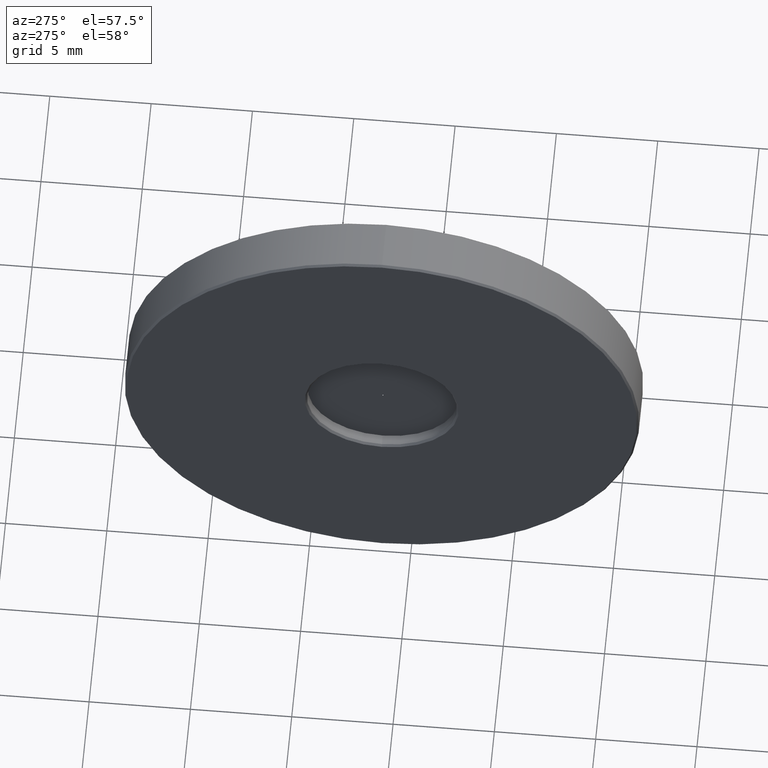
[diagram: clean part render]
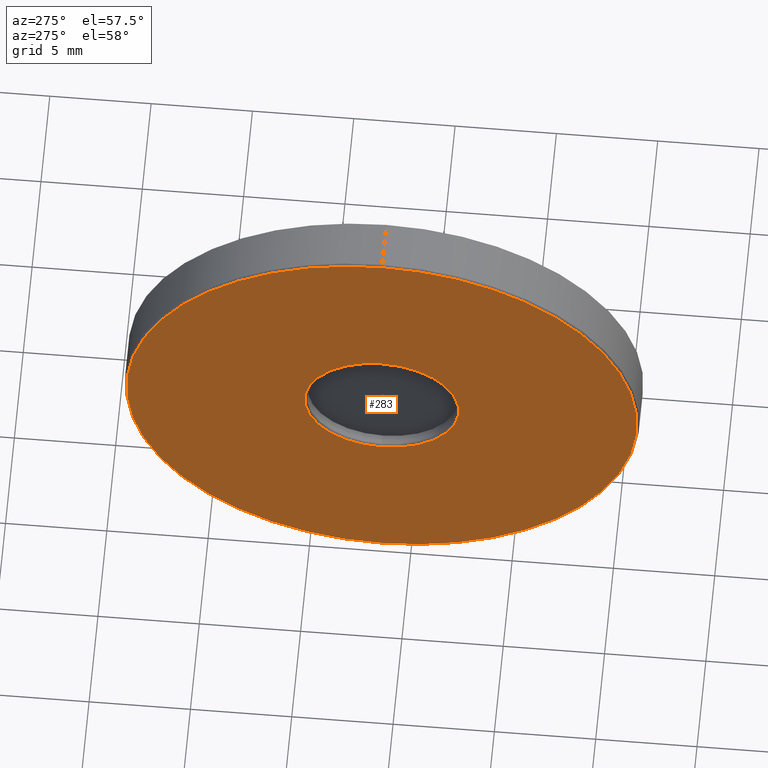
[diagram: same view with one face highlighted and labeled with its STEP entity id]
A machine part, auxiliary view. The second image highlights one B-rep face of the part: STEP entity #283.
In plain terms, the highlighted planar face has unit normal (1, 0, 0).
Its self-contained STEP definition (entity closure, byte-faithful):
#2 = CARTESIAN_POINT ( 'NONE',  ( -4.934863851253203926, 1.436758841085141070, 25.39999999999999858 ) ) ;
#7 = ORIENTED_EDGE ( 'NONE', *, *, #555, .T. ) ;
#29 = DIRECTION ( 'NONE',  ( 1.000000000000000000, 0.0000000000000000000, 0.0000000000000000000 ) ) ;
#30 = CARTESIAN_POINT ( 'NONE',  ( -4.934863851253203926, 1.436758841085141070, 25.39999999999999858 ) ) ;
#36 = CARTESIAN_POINT ( 'NONE',  ( -4.934863851253203926, 1.436758841085141070, 29.19999999999999929 ) ) ;
#72 = CIRCLE ( 'NONE', #774, 12.59999999999999787 ) ;
#85 = ORIENTED_EDGE ( 'NONE', *, *, #530, .T. ) ;
#133 = DIRECTION ( 'NONE',  ( 0.0000000000000000000, 0.0000000000000000000, -1.000000000000000000 ) ) ;
#139 = CARTESIAN_POINT ( 'NONE',  ( -4.934863851253203926, 1.436758841085141070, 25.39999999999999858 ) ) ;
#183 = ORIENTED_EDGE ( 'NONE', *, *, #638, .T. ) ;
#211 = VERTEX_POINT ( 'NONE', #647 ) ;
#213 = AXIS2_PLACEMENT_3D ( 'NONE', #315, #746, #629 ) ;
#239 = CIRCLE ( 'NONE', #784, 3.800000000000001155 ) ;
#252 = ORIENTED_EDGE ( 'NONE', *, *, #769, .T. ) ;
#260 = FACE_OUTER_BOUND ( 'NONE', #378, .T. ) ;
#279 = DIRECTION ( 'NONE',  ( 0.0000000000000000000, 0.0000000000000000000, -1.000000000000000000 ) ) ;
#283 = ADVANCED_FACE ( 'NONE', ( #607, #260 ), #401, .F. ) ;
#300 = VERTEX_POINT ( 'NONE', #584 ) ;
#315 = CARTESIAN_POINT ( 'NONE',  ( -4.934863851253203926, 1.436758841085141070, 25.39999999999999858 ) ) ;
#323 = DIRECTION ( 'NONE',  ( 0.0000000000000000000, 0.0000000000000000000, -1.000000000000000000 ) ) ;
#378 = EDGE_LOOP ( 'NONE', ( #85, #252 ) ) ;
#382 = CIRCLE ( 'NONE', #794, 12.59999999999999787 ) ;
#383 = AXIS2_PLACEMENT_3D ( 'NONE', #528, #29, #467 ) ;
#387 = EDGE_LOOP ( 'NONE', ( #183, #7 ) ) ;
#401 = PLANE ( 'NONE',  #383 ) ;
#449 = CIRCLE ( 'NONE', #213, 3.800000000000001155 ) ;
#467 = DIRECTION ( 'NONE',  ( 0.0000000000000000000, 0.0000000000000000000, -1.000000000000000000 ) ) ;
#501 = DIRECTION ( 'NONE',  ( 1.000000000000000000, 0.0000000000000000000, 0.0000000000000000000 ) ) ;
#528 = CARTESIAN_POINT ( 'NONE',  ( -4.934863851253203926, 1.436758841085141070, 25.39999999999999858 ) ) ;
#530 = EDGE_CURVE ( 'NONE', #211, #674, #382, .T. ) ;
#555 = EDGE_CURVE ( 'NONE', #300, #726, #239, .T. ) ;
#563 = CARTESIAN_POINT ( 'NONE',  ( -4.934863851253203926, 1.436758841085142402, 38.00000000000000000 ) ) ;
#584 = CARTESIAN_POINT ( 'NONE',  ( -4.934863851253203926, 1.436758841085141514, 21.59999999999999787 ) ) ;
#607 = FACE_BOUND ( 'NONE', #387, .T. ) ;
#629 = DIRECTION ( 'NONE',  ( 0.0000000000000000000, 0.0000000000000000000, -1.000000000000000000 ) ) ;
#638 = EDGE_CURVE ( 'NONE', #726, #300, #449, .T. ) ;
#647 = CARTESIAN_POINT ( 'NONE',  ( -4.934863851253203926, 1.436758841085141070, 12.80000000000000071 ) ) ;
#674 = VERTEX_POINT ( 'NONE', #563 ) ;
#688 = DIRECTION ( 'NONE',  ( -1.000000000000000000, -0.0000000000000000000, -0.0000000000000000000 ) ) ;
#719 = DIRECTION ( 'NONE',  ( -1.000000000000000000, -0.0000000000000000000, -0.0000000000000000000 ) ) ;
#726 = VERTEX_POINT ( 'NONE', #36 ) ;
#746 = DIRECTION ( 'NONE',  ( 1.000000000000000000, 0.0000000000000000000, 0.0000000000000000000 ) ) ;
#769 = EDGE_CURVE ( 'NONE', #674, #211, #72, .T. ) ;
#774 = AXIS2_PLACEMENT_3D ( 'NONE', #30, #719, #279 ) ;
#784 = AXIS2_PLACEMENT_3D ( 'NONE', #139, #501, #133 ) ;
#794 = AXIS2_PLACEMENT_3D ( 'NONE', #2, #688, #323 ) ;